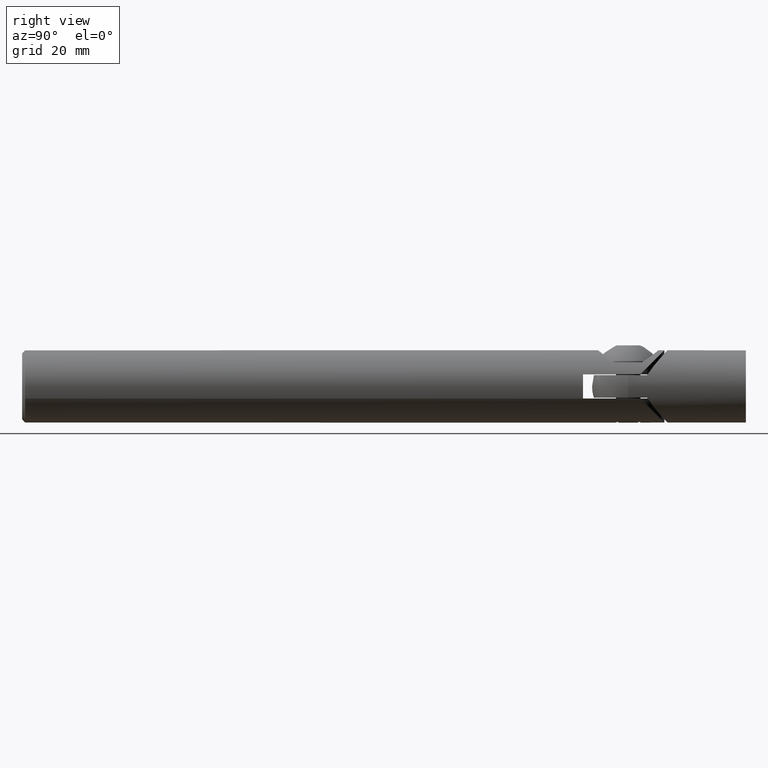
[diagram: clean part render]
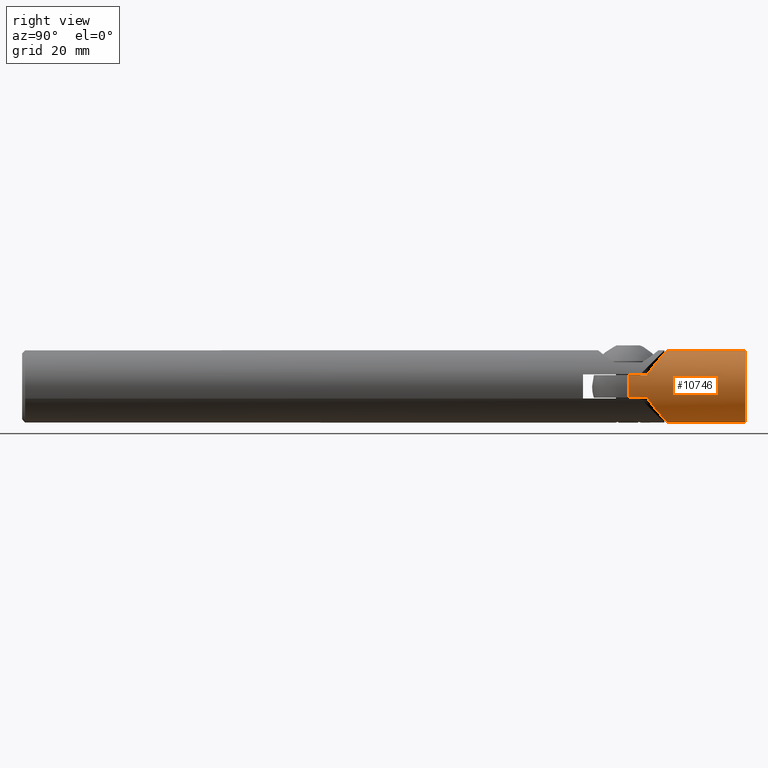
[diagram: same view with one face highlighted and labeled with its STEP entity id]
A machine part, right view. The second image highlights one B-rep face of the part: STEP entity #10746.
In plain terms, the highlighted cylindrical surface (bore or boss wall) has radius 6 mm, axis along (-0, -1, 0).
Its self-contained STEP definition (entity closure, byte-faithful):
#219 = EDGE_CURVE ( 'NONE', #11656, #1064, #2375, .T. ) ;
#247 = CARTESIAN_POINT ( 'NONE',  ( 5.374623752436474600E-033, 6.000000000000005300, 0.0000000000000000000 ) ) ;
#387 = CARTESIAN_POINT ( 'NONE',  ( -1.875000000000001800, 25.49999999999999600, 5.699506557588999400 ) ) ;
#396 = CARTESIAN_POINT ( 'NONE',  ( -4.347331513690996000, 11.01182362367340400, 4.179968714071661900 ) ) ;
#438 = CARTESIAN_POINT ( 'NONE',  ( -6.000331943230008800, 12.50030640904586400, -0.1625549102638956500 ) ) ;
#543 = CARTESIAN_POINT ( 'NONE',  ( -2.435892575228126400, 9.486065115203496500, 5.490915627202842800 ) ) ;
#591 = CARTESIAN_POINT ( 'NONE',  ( -2.436641307235134100, 9.486557849900696800, -5.490643595582533000 ) ) ;
#842 = CARTESIAN_POINT ( 'NONE',  ( 5.707417375835262900, 12.23089832068805900, -1.858353953437220000 ) ) ;
#874 = LINE ( 'NONE', #2203, #6884 ) ;
#897 = CARTESIAN_POINT ( 'NONE',  ( 6.000331943230008800, 12.50030640904586200, -0.1625549102638968200 ) ) ;
#936 = CARTESIAN_POINT ( 'NONE',  ( 2.165471735492421800, 9.299283041295447900, -5.603948372236426500 ) ) ;
#976 = CARTESIAN_POINT ( 'NONE',  ( 5.940556381582294600, 12.44515927387464600, -0.8598627562042569000 ) ) ;
#987 = VECTOR ( 'NONE', #8933, 1000.000000000000000 ) ;
#1064 = VERTEX_POINT ( 'NONE', #3271 ) ;
#1505 = CARTESIAN_POINT ( 'NONE',  ( -4.540473561626751800, 11.18248850333111700, -3.934115004568864600 ) ) ;
#1534 = EDGE_CURVE ( 'NONE', #11656, #11895, #8796, .T. ) ;
#1617 = CARTESIAN_POINT ( 'NONE',  ( -5.840910011443945400, 12.35341845738016000, 1.383063939325160700 ) ) ;
#1657 = CARTESIAN_POINT ( 'NONE',  ( -3.908599352263412400, 10.63138324985793300, 4.588644465451447600 ) ) ;
#1707 = CARTESIAN_POINT ( 'NONE',  ( -5.707417375835264700, 12.23089832068806600, -1.858353953437218900 ) ) ;
#1787 = AXIS2_PLACEMENT_3D ( 'NONE', #10649, #9766, #11772 ) ;
#1954 = CIRCLE ( 'NONE', #1787, 6.000000000000000900 ) ;
#1970 = CARTESIAN_POINT ( 'NONE',  ( 5.402969927907899500, 11.95294901552457400, -2.628867403611108200 ) ) ;
#2012 = CARTESIAN_POINT ( 'NONE',  ( 1.875000000000001800, 9.124999999999994700, 5.699506557588999400 ) ) ;
#2064 = CARTESIAN_POINT ( 'NONE',  ( 2.284215094785504200E-032, 25.49999999999999600, 0.0000000000000000000 ) ) ;
#2203 = CARTESIAN_POINT ( 'NONE',  ( -1.875000000000001800, 25.49999999999999600, -5.699506557588999400 ) ) ;
#2320 = DIRECTION ( 'NONE',  ( -6.270394377842564300E-033, -1.000000000000000000, 5.200459125639017200E-051 ) ) ;
#2375 = LINE ( 'NONE', #9999, #13723 ) ;
#2515 = EDGE_CURVE ( 'NONE', #11317, #11317, #1954, .T. ) ;
#2659 = CARTESIAN_POINT ( 'NONE',  ( -5.940556381582294600, 12.44515927387464800, -0.8598627562042552300 ) ) ;
#2704 = CARTESIAN_POINT ( 'NONE',  ( -3.199166822647293400, 10.05774676843748400, 5.084145294204411400 ) ) ;
#2872 = CARTESIAN_POINT ( 'NONE',  ( -1.875000000000001800, 9.124999999999994700, -5.699506557588999400 ) ) ;
#3016 = CARTESIAN_POINT ( 'NONE',  ( 5.533975599518213600, 12.07229902574371600, 2.342120990994260000 ) ) ;
#3024 = VERTEX_POINT ( 'NONE', #13659 ) ;
#3105 = CARTESIAN_POINT ( 'NONE',  ( 5.752901328581310200, 12.27260472444943700, 1.712665152811585900 ) ) ;
#3162 = DIRECTION ( 'NONE',  ( -6.270394377842564300E-033, -1.000000000000000000, 5.200459125639017200E-051 ) ) ;
#3271 = CARTESIAN_POINT ( 'NONE',  ( 1.875000000000001800, 6.000000000000005300, 5.699506557588999400 ) ) ;
#3370 = VERTEX_POINT ( 'NONE', #12222 ) ;
#3703 = CARTESIAN_POINT ( 'NONE',  ( -5.881553957054156200, 12.39081723198165400, -1.198706441346620400 ) ) ;
#3751 = CARTESIAN_POINT ( 'NONE',  ( -4.911105298138323900, 11.51010221644048100, 3.460332669807179200 ) ) ;
#3772 = ORIENTED_EDGE ( 'NONE', *, *, #219, .F. ) ;
#3853 = CARTESIAN_POINT ( 'NONE',  ( -2.165471735492424000, 9.299283041295447900, -5.603948372236427400 ) ) ;
#4091 = CARTESIAN_POINT ( 'NONE',  ( -1.875000000000001800, 9.124999999999994700, 5.699506557588999400 ) ) ;
#4113 = CARTESIAN_POINT ( 'NONE',  ( 5.084483756076971300, 11.66545912469395000, 3.201807720369405100 ) ) ;
#4208 = CARTESIAN_POINT ( 'NONE',  ( 5.992946940085370300, 12.49348747734984900, -0.3394110387251262400 ) ) ;
#4301 = CARTESIAN_POINT ( 'NONE',  ( 5.538450211437708300, 12.07637670554109400, -2.331938963265060200 ) ) ;
#4441 = ORIENTED_EDGE ( 'NONE', *, *, #10727, .F. ) ;
#4609 = EDGE_CURVE ( 'NONE', #3024, #8389, #5326, .T. ) ;
#4709 = DIRECTION ( 'NONE',  ( 6.270394377842564300E-033, 1.000000000000000000, -5.200459125639017200E-051 ) ) ;
#4760 = CARTESIAN_POINT ( 'NONE',  ( -5.999301171840913900, 12.49935492803685300, 0.3605767057599157900 ) ) ;
#4949 = LINE ( 'NONE', #10155, #987 ) ;
#4955 = CARTESIAN_POINT ( 'NONE',  ( -5.402969927907900400, 11.95294901552457200, -2.628867403611106400 ) ) ;
#5164 = CARTESIAN_POINT ( 'NONE',  ( 4.540473561626751800, 11.18248850333112000, -3.934115004568863800 ) ) ;
#5173 = CYLINDRICAL_SURFACE ( 'NONE', #11338, 6.000000000000000900 ) ;
#5246 = CARTESIAN_POINT ( 'NONE',  ( 5.397768190748371000, 11.94822271513283800, 2.639629955689386100 ) ) ;
#5299 = CARTESIAN_POINT ( 'NONE',  ( 3.203186419541641100, 10.06088980599747300, -5.081736704168082300 ) ) ;
#5305 = DIRECTION ( 'NONE',  ( -6.270394377842564300E-033, -1.000000000000000000, 5.200459125639017200E-051 ) ) ;
#5326 = LINE ( 'NONE', #387, #12400 ) ;
#5537 = B_SPLINE_CURVE_WITH_KNOTS ( 'NONE', 3,
 ( #8224, #9377, #543, #10347, #2704, #1657, #396, #3751, #11456, #12574, #9215, #12629, #10432, #1617, #13771, #9364, #4760, #438, #10489, #13665, #2659, #3703, #10390, #7055, #1707, #5944, #4955, #8068, #12472, #1505, #7146, #12516, #7105, #6055, #6953, #591, #3853, #9326 ),
 .UNSPECIFIED., .F., .F.,
 ( 4, 2, 2, 2, 2, 2, 2, 2, 2, 2, 2, 2, 2, 2, 2, 2, 2, 2, 4 ),
 ( 0.0000000000000000000, 0.001036031452614965700, 0.002072062905229931300, 0.004144125810459867900, 0.005180157263074834800, 0.006216188715689800100, 0.006734204441997284000, 0.007252220168304766200, 0.008288251620919732200, 0.008806267347227215300, 0.009324283073534696600, 0.009842298799842179700, 0.01036031452614966400, 0.01139634597876463100, 0.01243237743137959700, 0.01346840888399456600, 0.01450444033660953200, 0.01554047178922450200, 0.01657650324183946800 ),
 .UNSPECIFIED. ) ;
#5913 = ORIENTED_EDGE ( 'NONE', *, *, #8051, .T. ) ;
#5944 = CARTESIAN_POINT ( 'NONE',  ( -5.538450211437707400, 12.07637670554109600, -2.331938963265058500 ) ) ;
#6055 = CARTESIAN_POINT ( 'NONE',  ( -3.203186419541644600, 10.06088980599747100, -5.081736704168082300 ) ) ;
#6257 = CARTESIAN_POINT ( 'NONE',  ( 3.679300111451203400, 10.44608502935369500, -4.748389396279571400 ) ) ;
#6299 = CARTESIAN_POINT ( 'NONE',  ( 3.908599352263412400, 10.63138324985793100, 4.588644465451449300 ) ) ;
#6352 = CARTESIAN_POINT ( 'NONE',  ( 3.199166822647293400, 10.05774676843748600, 5.084145294204413200 ) ) ;
#6433 = CARTESIAN_POINT ( 'NONE',  ( 2.952969745838433200, 9.865114185793784100, 5.231032091592900300 ) ) ;
#6791 = VERTEX_POINT ( 'NONE', #2872 ) ;
#6804 = VERTEX_POINT ( 'NONE', #8322 ) ;
#6884 = VECTOR ( 'NONE', #5305, 1000.000000000000000 ) ;
#6953 = CARTESIAN_POINT ( 'NONE',  ( -2.955671222718649500, 9.867151038863985600, -5.229569349098344600 ) ) ;
#7055 = CARTESIAN_POINT ( 'NONE',  ( -5.758066267711472000, 12.27734270178811500, -1.695198033741982500 ) ) ;
#7105 = CARTESIAN_POINT ( 'NONE',  ( -3.679300111451203800, 10.44608502935369300, -4.748389396279568700 ) ) ;
#7146 = CARTESIAN_POINT ( 'NONE',  ( -4.338749211671259200, 11.00622850641173600, -4.154858430257191600 ) ) ;
#7195 = EDGE_CURVE ( 'NONE', #3370, #11895, #4949, .T. ) ;
#7237 = CARTESIAN_POINT ( 'NONE',  ( 1.875000000000001800, 9.124999999999994700, -5.699506557588999400 ) ) ;
#7363 = CARTESIAN_POINT ( 'NONE',  ( 5.091664601751723800, 11.67191029162921900, -3.190294571182189300 ) ) ;
#7393 = FACE_OUTER_BOUND ( 'NONE', #10461, .T. ) ;
#7410 = CARTESIAN_POINT ( 'NONE',  ( 5.844978074349970900, 12.35715918803105700, -1.365743324101389400 ) ) ;
#7451 = CARTESIAN_POINT ( 'NONE',  ( 5.999301171840913000, 12.49935492803685100, 0.3605767057599157400 ) ) ;
#7460 = ORIENTED_EDGE ( 'NONE', *, *, #1534, .T. ) ;
#7497 = CARTESIAN_POINT ( 'NONE',  ( 2.436641307235134900, 9.486557849900700400, -5.490643595582534800 ) ) ;
#7802 = DIRECTION ( 'NONE',  ( 6.270394377842564300E-033, 1.000000000000000000, -5.200459125639017200E-051 ) ) ;
#8051 = EDGE_CURVE ( 'NONE', #3024, #1064, #8628, .T. ) ;
#8068 = CARTESIAN_POINT ( 'NONE',  ( -5.091664601751724600, 11.67191029162921900, -3.190294571182188000 ) ) ;
#8224 = CARTESIAN_POINT ( 'NONE',  ( -1.875000000000001800, 9.124999999999994700, 5.699506557588999400 ) ) ;
#8322 = CARTESIAN_POINT ( 'NONE',  ( -1.875000000000001800, 6.000000000000005300, -5.699506557588999400 ) ) ;
#8389 = VERTEX_POINT ( 'NONE', #4091 ) ;
#8555 = CARTESIAN_POINT ( 'NONE',  ( 5.968448863603416800, 12.47084509017784400, 0.7045191780326002200 ) ) ;
#8628 = CIRCLE ( 'NONE', #13736, 6.000000000000000900 ) ;
#8648 = CARTESIAN_POINT ( 'NONE',  ( 4.911105298138324700, 11.51010221644048100, 3.460332669807180100 ) ) ;
#8796 = B_SPLINE_CURVE_WITH_KNOTS ( 'NONE', 3,
 ( #2012, #13073, #11862, #6433, #6352, #6299, #14171, #8648, #4113, #5246, #3016, #14066, #3105, #14116, #12985, #8555, #7451, #897, #4208, #10842, #976, #10891, #7410, #11813, #842, #4301, #1970, #7363, #9672, #5164, #9623, #12886, #6257, #5299, #9762, #7497, #936, #10740 ),
 .UNSPECIFIED., .F., .F.,
 ( 4, 2, 2, 2, 2, 2, 2, 2, 2, 2, 2, 2, 2, 2, 2, 2, 2, 2, 4 ),
 ( 0.0000000000000000000, 0.001036031452614964600, 0.002072062905229929200, 0.004144125810459864400, 0.005180157263074830500, 0.006216188715689794800, 0.006734204441997277000, 0.007252220168304760100, 0.008288251620919727000, 0.008806267347227208400, 0.009324283073534691400, 0.009842298799842174500, 0.01036031452614966100, 0.01139634597876462900, 0.01243237743137959500, 0.01346840888399456400, 0.01450444033660953200, 0.01554047178922450200, 0.01657650324183946800 ),
 .UNSPECIFIED. ) ;
#8913 = AXIS2_PLACEMENT_3D ( 'NONE', #9048, #7802, #10179 ) ;
#8932 = FACE_OUTER_BOUND ( 'NONE', #11743, .T. ) ;
#8933 = DIRECTION ( 'NONE',  ( 6.270394377842564300E-033, 1.000000000000000000, -5.200459125639017200E-051 ) ) ;
#9048 = CARTESIAN_POINT ( 'NONE',  ( 5.374623752436474600E-033, 6.000000000000005300, 0.0000000000000000000 ) ) ;
#9215 = CARTESIAN_POINT ( 'NONE',  ( -5.533975599518214500, 12.07229902574371600, 2.342120990994259500 ) ) ;
#9296 = ORIENTED_EDGE ( 'NONE', *, *, #10239, .T. ) ;
#9326 = CARTESIAN_POINT ( 'NONE',  ( -1.875000000000001800, 9.124999999999994700, -5.699506557588999400 ) ) ;
#9364 = CARTESIAN_POINT ( 'NONE',  ( -5.968448863603417600, 12.47084509017785000, 0.7045191780326010000 ) ) ;
#9377 = CARTESIAN_POINT ( 'NONE',  ( -2.165372878115555500, 9.299223726869327000, 5.603980893925762700 ) ) ;
#9536 = ORIENTED_EDGE ( 'NONE', *, *, #2515, .F. ) ;
#9623 = CARTESIAN_POINT ( 'NONE',  ( 4.338749211671258300, 11.00622850641173800, -4.154858430257192500 ) ) ;
#9672 = CARTESIAN_POINT ( 'NONE',  ( 4.916262054299631100, 11.51470031006891000, -3.453046256055512900 ) ) ;
#9713 = DIRECTION ( 'NONE',  ( 2.696301922142130200E-033, 0.0000000000000000000, -1.000000000000000000 ) ) ;
#9762 = CARTESIAN_POINT ( 'NONE',  ( 2.955671222718650800, 9.867151038863983800, -5.229569349098343700 ) ) ;
#9766 = DIRECTION ( 'NONE',  ( 6.270394377842564300E-033, 1.000000000000000000, -5.200459125639017200E-051 ) ) ;
#9999 = CARTESIAN_POINT ( 'NONE',  ( 1.875000000000001800, 25.49999999999999600, 5.699506557588999400 ) ) ;
#10153 = DIRECTION ( 'NONE',  ( 6.270394377842564300E-033, 1.000000000000000000, -5.200459125639017200E-051 ) ) ;
#10155 = CARTESIAN_POINT ( 'NONE',  ( 1.875000000000001800, 25.49999999999999600, -5.699506557588999400 ) ) ;
#10179 = DIRECTION ( 'NONE',  ( 2.696301922142130200E-033, 0.0000000000000000000, -1.000000000000000000 ) ) ;
#10239 = EDGE_CURVE ( 'NONE', #3370, #6804, #11210, .T. ) ;
#10347 = CARTESIAN_POINT ( 'NONE',  ( -2.952969745838433600, 9.865114185793785900, 5.231032091592899400 ) ) ;
#10390 = CARTESIAN_POINT ( 'NONE',  ( -5.844978074349971700, 12.35715918803105700, -1.365743324101388300 ) ) ;
#10432 = CARTESIAN_POINT ( 'NONE',  ( -5.752901328581311100, 12.27260472444943500, 1.712665152811585700 ) ) ;
#10461 = EDGE_LOOP ( 'NONE', ( #13318, #9296, #4441, #12698, #12310, #5913, #3772, #7460 ) ) ;
#10489 = CARTESIAN_POINT ( 'NONE',  ( -5.992946940085367700, 12.49348747734984700, -0.3394110387251252400 ) ) ;
#10649 = CARTESIAN_POINT ( 'NONE',  ( 2.284215094785504200E-032, 25.49999999999999600, 0.0000000000000000000 ) ) ;
#10727 = EDGE_CURVE ( 'NONE', #6791, #6804, #874, .T. ) ;
#10740 = CARTESIAN_POINT ( 'NONE',  ( 1.875000000000001800, 9.124999999999994700, -5.699506557588999400 ) ) ;
#10746 = ADVANCED_FACE ( 'NONE', ( #8932, #7393 ), #5173, .T. ) ;
#10842 = CARTESIAN_POINT ( 'NONE',  ( 5.962985061293454500, 12.46584545384666700, -0.6880567118182585600 ) ) ;
#10891 = CARTESIAN_POINT ( 'NONE',  ( 5.881553957054157100, 12.39081723198165500, -1.198706441346622200 ) ) ;
#11210 = CIRCLE ( 'NONE', #8913, 6.000000000000000900 ) ;
#11317 = VERTEX_POINT ( 'NONE', #12247 ) ;
#11338 = AXIS2_PLACEMENT_3D ( 'NONE', #2064, #3162, #9713 ) ;
#11456 = CARTESIAN_POINT ( 'NONE',  ( -5.084483756076971300, 11.66545912469395000, 3.201807720369405100 ) ) ;
#11656 = VERTEX_POINT ( 'NONE', #13010 ) ;
#11743 = EDGE_LOOP ( 'NONE', ( #9536 ) ) ;
#11772 = DIRECTION ( 'NONE',  ( -2.696301922142130200E-033, 0.0000000000000000000, 1.000000000000000000 ) ) ;
#11813 = CARTESIAN_POINT ( 'NONE',  ( 5.758066267711471100, 12.27734270178811500, -1.695198033741983600 ) ) ;
#11862 = CARTESIAN_POINT ( 'NONE',  ( 2.435892575228126400, 9.486065115203496500, 5.490915627202842800 ) ) ;
#11895 = VERTEX_POINT ( 'NONE', #7237 ) ;
#12222 = CARTESIAN_POINT ( 'NONE',  ( 1.875000000000001800, 6.000000000000005300, -5.699506557588999400 ) ) ;
#12247 = CARTESIAN_POINT ( 'NONE',  ( 6.664339415002258100E-033, 25.49999999999999600, 6.000000000000000900 ) ) ;
#12310 = ORIENTED_EDGE ( 'NONE', *, *, #4609, .F. ) ;
#12374 = EDGE_CURVE ( 'NONE', #8389, #6791, #5537, .T. ) ;
#12400 = VECTOR ( 'NONE', #4709, 1000.000000000000000 ) ;
#12472 = CARTESIAN_POINT ( 'NONE',  ( -4.916262054299632000, 11.51470031006890700, -3.453046256055512400 ) ) ;
#12516 = CARTESIAN_POINT ( 'NONE',  ( -3.908788821570148700, 10.63855680015490000, -4.561684255362868300 ) ) ;
#12574 = CARTESIAN_POINT ( 'NONE',  ( -5.397768190748373700, 11.94822271513284300, 2.639629955689388700 ) ) ;
#12629 = CARTESIAN_POINT ( 'NONE',  ( -5.702564255147020600, 12.22645336163186900, 1.873063021910694500 ) ) ;
#12698 = ORIENTED_EDGE ( 'NONE', *, *, #12374, .F. ) ;
#12886 = CARTESIAN_POINT ( 'NONE',  ( 3.908788821570147800, 10.63855680015489800, -4.561684255362866500 ) ) ;
#12985 = CARTESIAN_POINT ( 'NONE',  ( 5.878530023254685800, 12.38803403405258900, 1.213493734268718200 ) ) ;
#13010 = CARTESIAN_POINT ( 'NONE',  ( 1.875000000000001800, 9.124999999999994700, 5.699506557588999400 ) ) ;
#13073 = CARTESIAN_POINT ( 'NONE',  ( 2.165372878115555500, 9.299223726869327000, 5.603980893925760000 ) ) ;
#13264 = DIRECTION ( 'NONE',  ( 2.664535259100375700E-015, 0.0000000000000000000, -1.000000000000000000 ) ) ;
#13318 = ORIENTED_EDGE ( 'NONE', *, *, #7195, .F. ) ;
#13659 = CARTESIAN_POINT ( 'NONE',  ( -1.875000000000001800, 6.000000000000005300, 5.699506557588999400 ) ) ;
#13665 = CARTESIAN_POINT ( 'NONE',  ( -5.962985061293456300, 12.46584545384667200, -0.6880567118182576700 ) ) ;
#13723 = VECTOR ( 'NONE', #2320, 1000.000000000000000 ) ;
#13736 = AXIS2_PLACEMENT_3D ( 'NONE', #247, #10153, #13264 ) ;
#13771 = CARTESIAN_POINT ( 'NONE',  ( -5.878530023254685800, 12.38803403405258900, 1.213493734268718400 ) ) ;
#14066 = CARTESIAN_POINT ( 'NONE',  ( 5.702564255147019700, 12.22645336163187000, 1.873063021910693800 ) ) ;
#14116 = CARTESIAN_POINT ( 'NONE',  ( 5.840910011443947200, 12.35341845738016200, 1.383063939325160900 ) ) ;
#14171 = CARTESIAN_POINT ( 'NONE',  ( 4.347331513690996900, 11.01182362367340800, 4.179968714071664600 ) ) ;